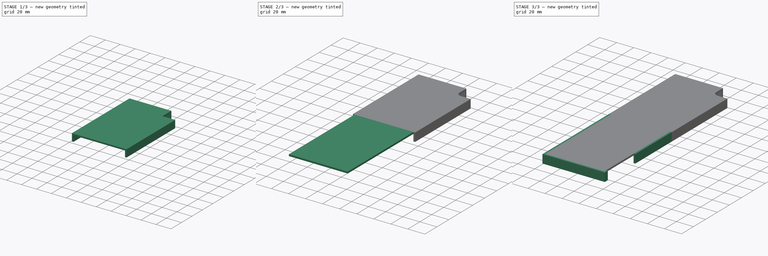
[diagram: build sequence overview — one tinted view per stage of 3, left to right]
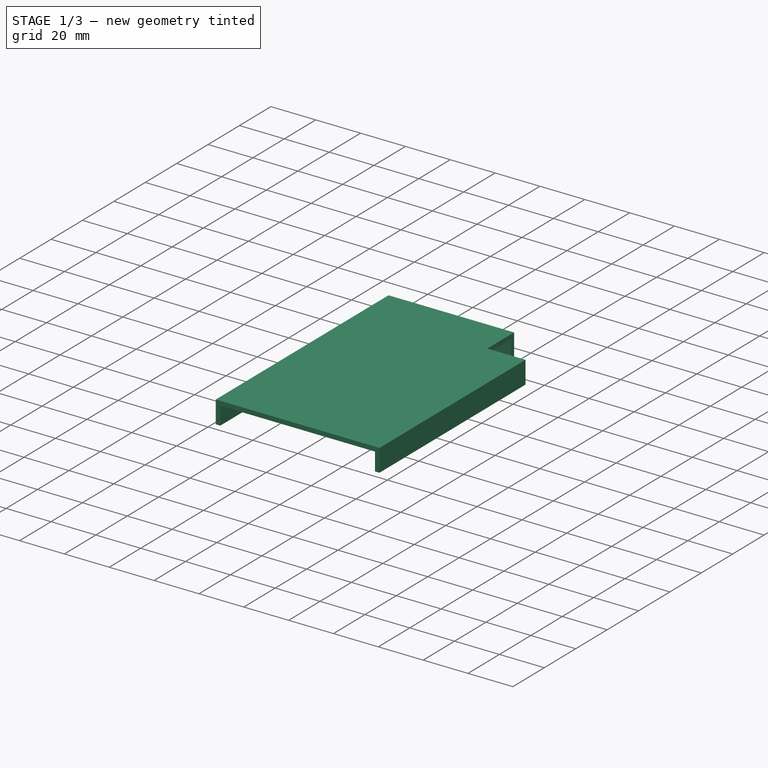
[diagram: stage 1 of 3 — iso view after this stage's code; geometry added in this stage tinted green]
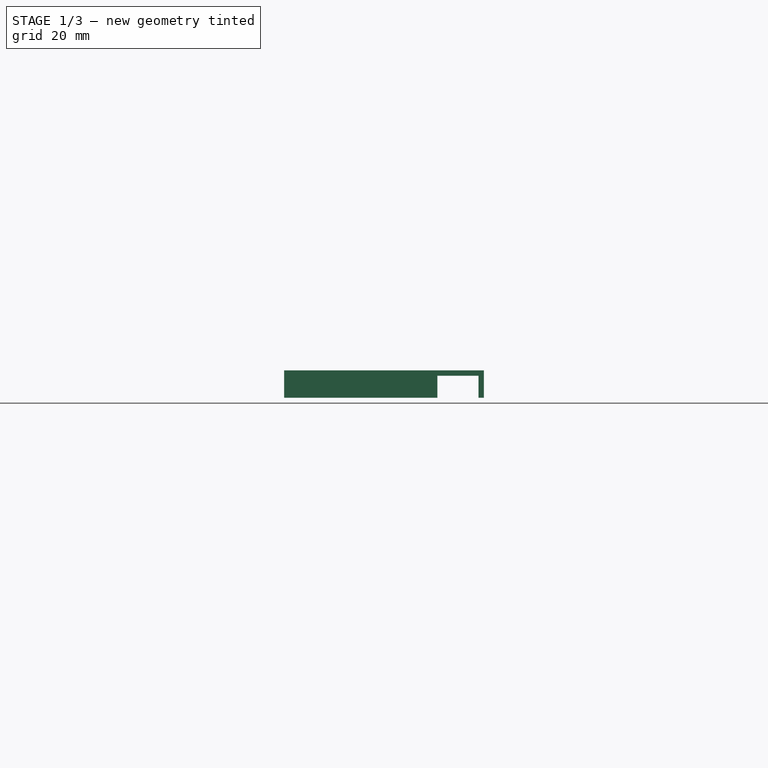
[diagram: stage 1 of 3 — front view after this stage's code; geometry added in this stage tinted green]
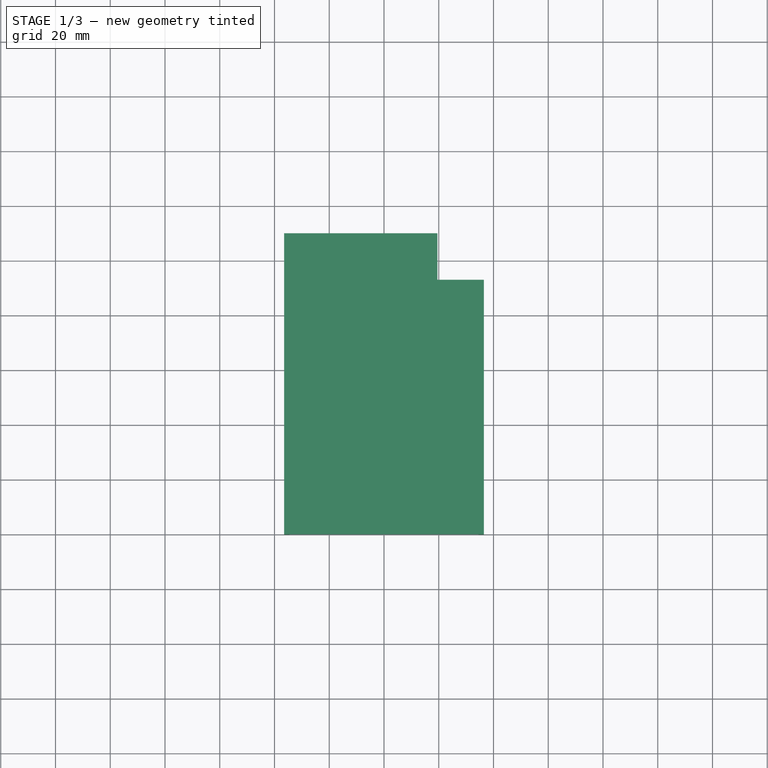
[diagram: stage 1 of 3 — top view after this stage's code; geometry added in this stage tinted green]
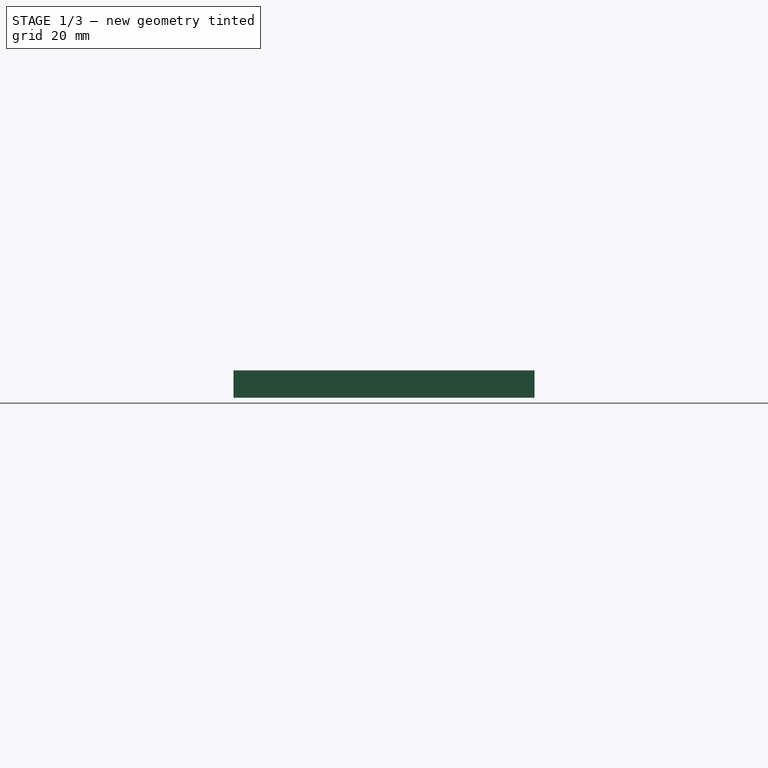
[diagram: stage 1 of 3 — right view after this stage's code; geometry added in this stage tinted green]
FCSTD DOCUMENT  (FreeCAD 0.21R33771 (Git))
Label: filter lid
License: All rights reserved
LicenseURL: https://en.wikipedia.org/wiki/All_rights_reserved
objects: Sketcher::SketchObject×5, PartDesign::Pad×4, PartDesign::Body×2, PartDesign::Pocket×1, PartDesign::Fillet×1
note: 19 computed .brp shape members not serialized (recipe doc carries the construction recipe); baked Part::Feature solids carry a one-line shape summary decoded from their .brp

FEATURE [Sketcher::SketchObject] Sketch
  FullyConstrained = true
  MapMode = 5
  Support = -> [XY_Plane]
  sketch-geometry (6):
    g0: LineSegment StartX=-34.5 StartY=108 StartZ=0 EndX=19.5 EndY=108 EndZ=0
    g1: LineSegment StartX=34.5 StartY=93 StartZ=0 EndX=34.5 EndY=0 EndZ=0
    g2: LineSegment StartX=34.5 StartY=0 StartZ=0 EndX=-34.5 EndY=0 EndZ=0
    g3: LineSegment StartX=-34.5 StartY=0 StartZ=0 EndX=-34.5 EndY=108 EndZ=0
    g4: LineSegment StartX=34.5 StartY=93 StartZ=0 EndX=19.5 EndY=93 EndZ=0
    g5: LineSegment StartX=19.5 StartY=93 StartZ=0 EndX=19.5 EndY=108 EndZ=0
  constraints (17):
    c: Symmetric(g2,g1,g-1)
    c: Coincident(g0,g5)
    c: Coincident(g4,g5)
    c: Coincident(g1,g4)
    c: DistanceY(g5,g5) = 15
    c: DistanceX(g4,g4) = 15
    c: DistanceY(g1,g1) = 93
    c: DistanceY(g3,g3) = 108
    c: DistanceX(g2,g2) = 69
    c: Vertical(g3)
    c: Vertical(g1)
    c: Horizontal(g0)
    c: Horizontal(g2)
    c: Vertical(g5)
    c: Coincident(g2,g3)
    c: Coincident(g0,g3)
    c: Coincident(g1,g2)
FEATURE [PartDesign::Pad] Pad
  Direction = (0,0,1)
  Length = 2
  Length2 = 10
  Profile = -> Sketch
  ReferenceAxis = -> Sketch [N_Axis]
  Type = 0
FEATURE [Sketcher::SketchObject] Sketch001
  AttachmentOffset = pos=(0,0,-8) rot=(0,0,1;0rad)
  ExternalGeometry = -> [Pad]
  FullyConstrained = true
  MapMode = 5
  Placement = pos=(0,0,-8) rot=(0,0,1;0rad)
  Support = -> [XY_Plane]
  sketch-geometry (10):
    g0: LineSegment StartX=-34.5 StartY=108 StartZ=0 EndX=-34.5 EndY=0 EndZ=0
    g1: LineSegment StartX=-34.5 StartY=0 StartZ=0 EndX=-36.5 EndY=0 EndZ=0
    g2: LineSegment StartX=-36.5 StartY=0 StartZ=0 EndX=-36.5 EndY=110 EndZ=0
    g3: LineSegment StartX=-36.5 StartY=110 StartZ=0 EndX=19.5 EndY=110 EndZ=0
    g4: LineSegment StartX=19.5 StartY=110 StartZ=0 EndX=19.5 EndY=108 EndZ=0
    g5: LineSegment StartX=19.5 StartY=108 StartZ=0 EndX=-34.5 EndY=108 EndZ=0
    g6: LineSegment StartX=34.5 StartY=93 StartZ=0 EndX=36.5 EndY=93 EndZ=0
    g7: LineSegment StartX=36.5 StartY=93 StartZ=0 EndX=36.5 EndY=0 EndZ=0
    g8: LineSegment StartX=36.5 StartY=0 StartZ=0 EndX=34.5 EndY=0 EndZ=0
    g9: LineSegment StartX=34.5 StartY=0 StartZ=0 EndX=34.5 EndY=93 EndZ=0
  constraints (27):
    c: Coincident(g0,g1)
    c: Coincident(g1,g2)
    c: Horizontal(g1)
    c: Vertical(g0)
    c: Vertical(g2)
    c: Coincident(g0,g-3)
    c: PointOnObject(g0,g-5)
    c: Coincident(g2,g3)
    c: Horizontal(g3)
    c: Coincident(g3,g4)
    c: Coincident(g4,g-5)
    c: Coincident(g4,g5)
    c: Coincident(g5,g0)
    c: Vertical(g4)
    c: DistanceY(g4,g4) = 2
    c: DistanceX(g1,g1) = 2
    c: Coincident(g6,g7)
    c: Coincident(g7,g8)
    c: Coincident(g8,g9)
    c: Coincident(g9,g6)
    c: Horizontal(g6)
    c: Horizontal(g8)
    c: Vertical(g7)
    c: Vertical(g9)
    c: Coincident(g6,g-4)
    c: PointOnObject(g7,g-1)
    c: DistanceX(g6,g6) = 2
FEATURE [PartDesign::Pad] Pad001
  AlongSketchNormal = false
  BaseFeature = -> Pad
  Direction = (0,0,1)
  Length = 10
  Length2 = 10
  Profile = -> Sketch001
  ReferenceAxis = -> Sketch001 [N_Axis]
  Type = 0
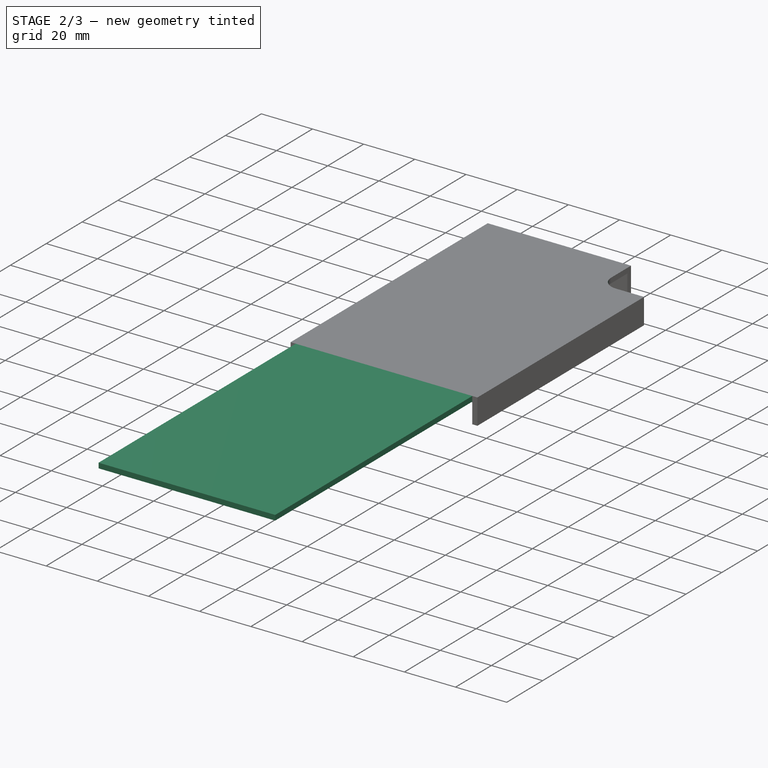
[diagram: stage 2 of 3 — iso view after this stage's code; geometry added in this stage tinted green]
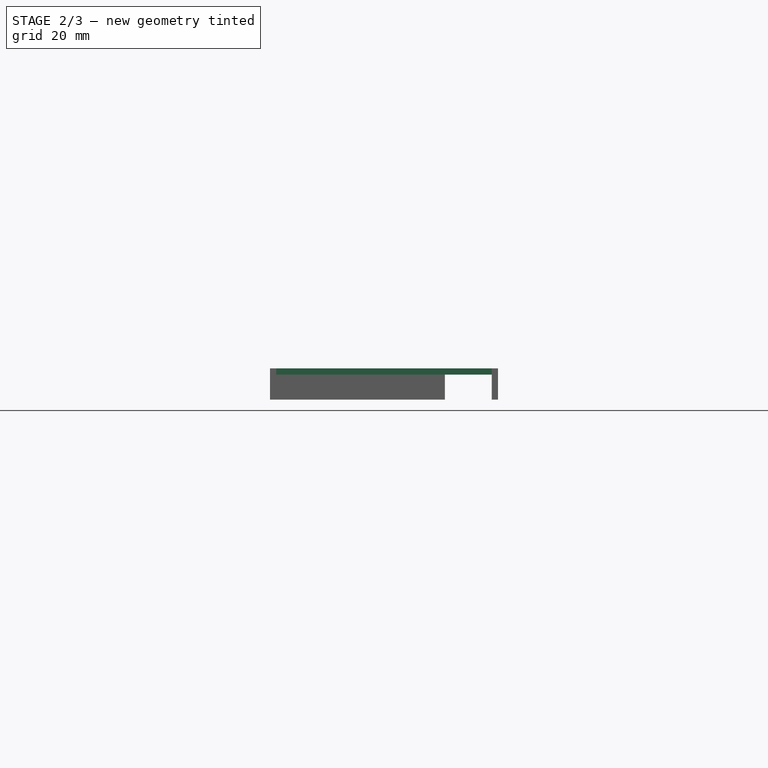
[diagram: stage 2 of 3 — front view after this stage's code; geometry added in this stage tinted green]
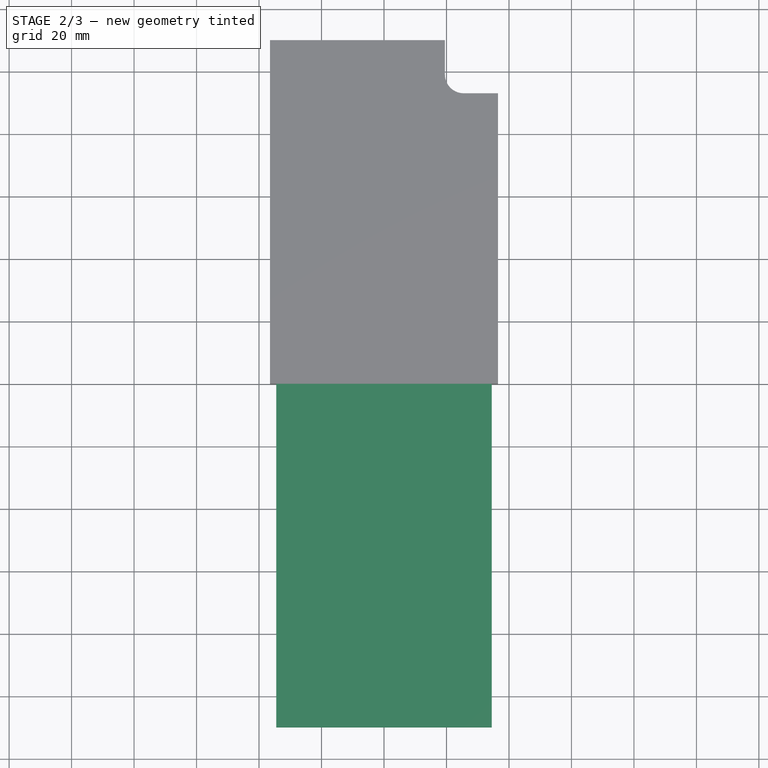
[diagram: stage 2 of 3 — top view after this stage's code; geometry added in this stage tinted green]
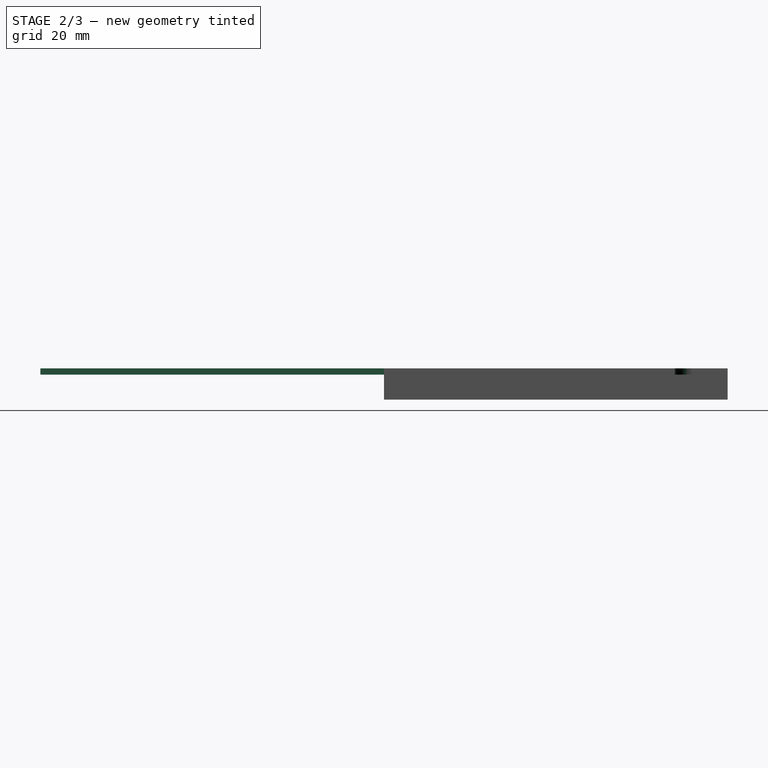
[diagram: stage 2 of 3 — right view after this stage's code; geometry added in this stage tinted green]
FEATURE [Sketcher::SketchObject] Sketch002
  FullyConstrained = true
  MapMode = 5
  Support = -> [XY_Plane001]
  sketch-geometry (4):
    g0: LineSegment StartX=34.5 StartY=0 StartZ=0 EndX=-34.5 EndY=0 EndZ=0
    g1: LineSegment StartX=-34.5 StartY=0 StartZ=0 EndX=-34.5 EndY=-110 EndZ=0
    g2: LineSegment StartX=-34.5 StartY=-110 StartZ=0 EndX=34.5 EndY=-110 EndZ=0
    g3: LineSegment StartX=34.5 StartY=-110 StartZ=0 EndX=34.5 EndY=0 EndZ=0
  constraints (11):
    c: PointOnObject(g0,g-1)
    c: Coincident(g0,g1)
    c: Vertical(g1)
    c: Coincident(g1,g2)
    c: Horizontal(g2)
    c: Coincident(g2,g3)
    c: Coincident(g3,g0)
    c: Vertical(g3)
    c: DistanceY(g1,g1) = 110
    c: DistanceX(g2,g2) = 69
    c: Symmetric(g0,g0,g-1)
FEATURE [PartDesign::Pad] Pad002
  Direction = (0,0,1)
  Length = 2
  Length2 = 10
  Profile = -> Sketch002
  ReferenceAxis = -> Sketch002 [N_Axis]
  Type = 0
FEATURE [PartDesign::Body] Body001
  Group = -> [Sketch002,Pad002,Sketch003,Pad003,Sketch004,Pocket]
  Origin = -> Origin001
  Tip = -> Pocket
FEATURE [PartDesign::Fillet] Fillet
  Base = -> Pad001 [Edge41]
  BaseFeature = -> Pad001
  Radius = 6
  SupportTransform = false
  UseAllEdges = false
FEATURE [PartDesign::Body] Body
  Group = -> [Sketch,Pad,Sketch001,Pad001,Fillet]
  Origin = -> Origin
  Tip = -> Fillet
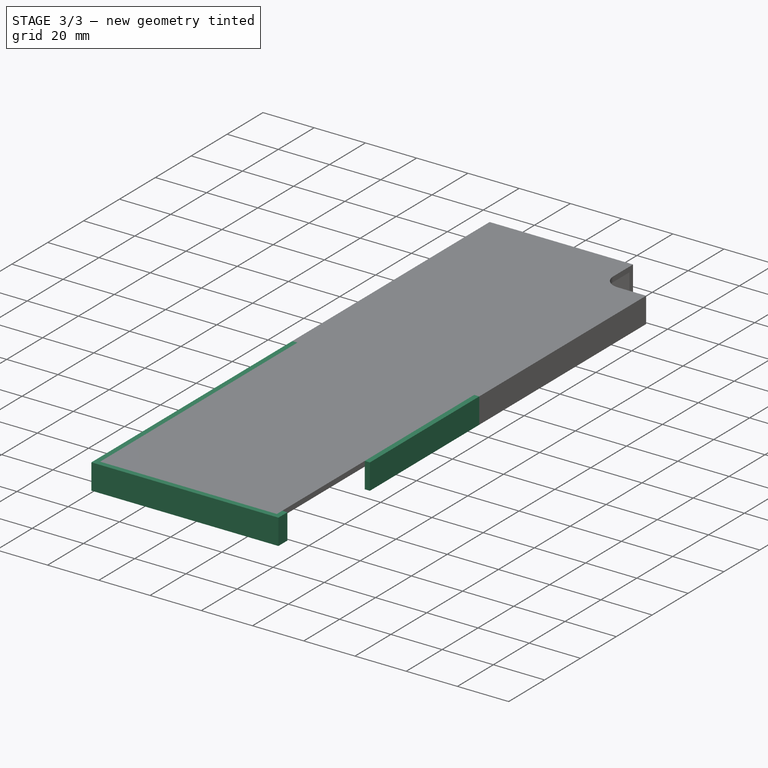
[diagram: stage 3 of 3 — iso view after this stage's code; geometry added in this stage tinted green]
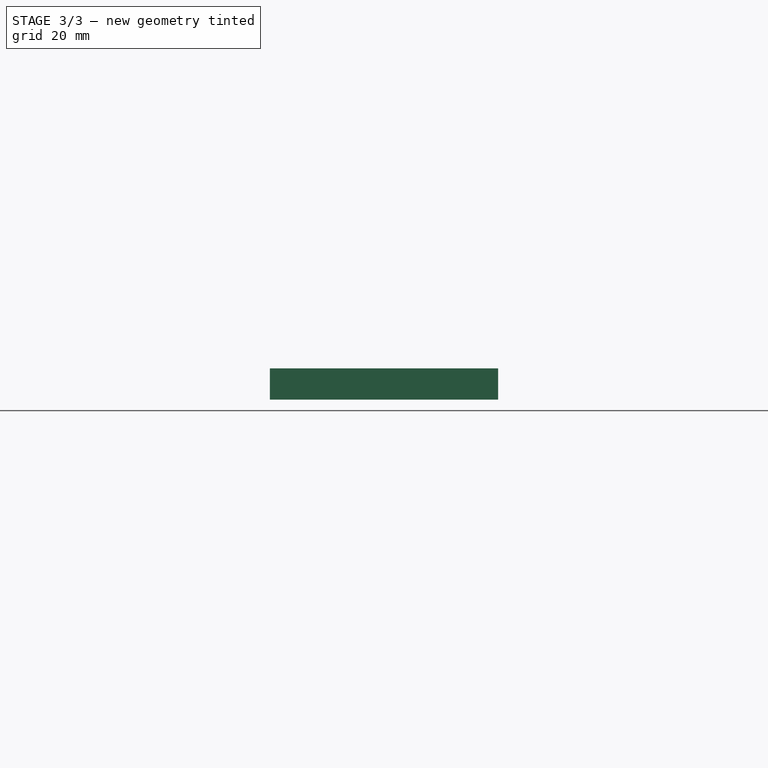
[diagram: stage 3 of 3 — front view after this stage's code; geometry added in this stage tinted green]
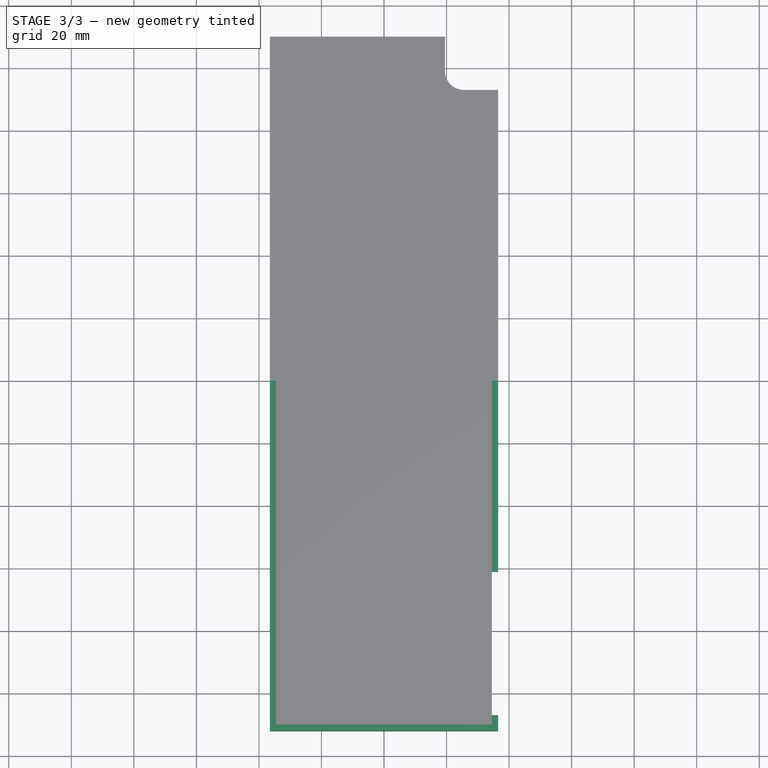
[diagram: stage 3 of 3 — top view after this stage's code; geometry added in this stage tinted green]
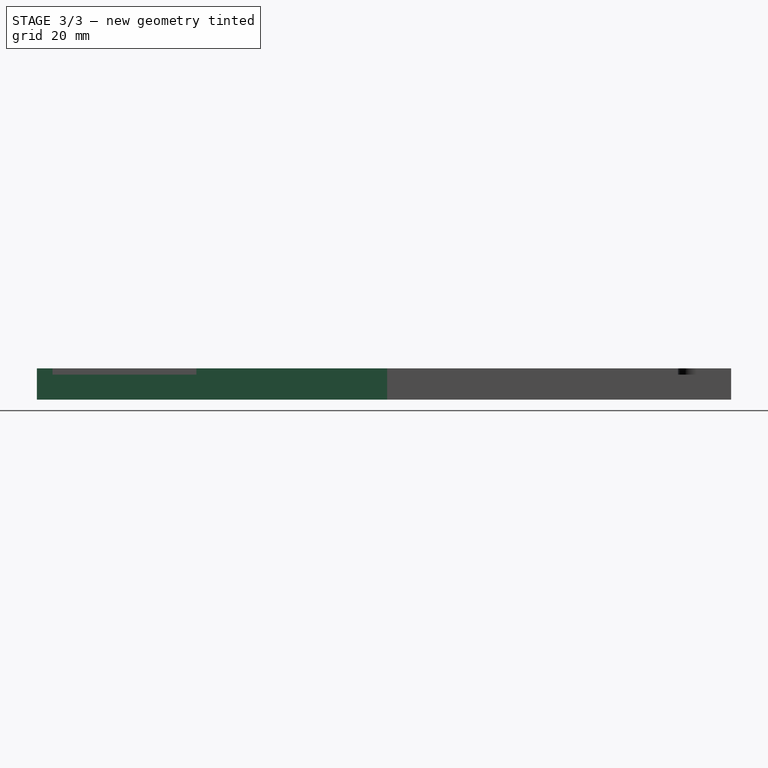
[diagram: stage 3 of 3 — right view after this stage's code; geometry added in this stage tinted green]
FEATURE [Sketcher::SketchObject] Sketch003
  AttachmentOffset = pos=(0,0,-8) rot=(0,0,1;0rad)
  FullyConstrained = true
  MapMode = 5
  Placement = pos=(0,0,-8) rot=(0,0,1;0rad)
  Support = -> [XY_Plane001]
  sketch-geometry (8):
    g0: LineSegment StartX=-34.5 StartY=0 StartZ=0 EndX=-36.5 EndY=0 EndZ=0
    g1: LineSegment StartX=-36.5 StartY=0 StartZ=0 EndX=-36.5 EndY=-112 EndZ=0
    g2: LineSegment StartX=-36.5 StartY=-112 StartZ=0 EndX=36.5 EndY=-112 EndZ=0
    g3: LineSegment StartX=36.5 StartY=-112 StartZ=0 EndX=36.5 EndY=0 EndZ=0
    g4: LineSegment StartX=36.5 StartY=0 StartZ=0 EndX=34.5 EndY=1.61983e-11 EndZ=0
    g5: LineSegment StartX=34.5 StartY=1.61983e-11 StartZ=0 EndX=34.5 EndY=-110 EndZ=0
    g6: LineSegment StartX=34.5 StartY=-110 StartZ=0 EndX=-34.5 EndY=-110 EndZ=0
    g7: LineSegment StartX=-34.5 StartY=-110 StartZ=0 EndX=-34.5 EndY=0 EndZ=0
  constraints (23):
    c: PointOnObject(g0,g-1)
    c: PointOnObject(g0,g-1)
    c: Coincident(g0,g1)
    c: Vertical(g1)
    c: Coincident(g1,g2)
    c: Horizontal(g2)
    c: PointOnObject(g3,g-1)
    c: Vertical(g3)
    c: Coincident(g3,g4)
    c: Coincident(g4,g5)
    c: Vertical(g5)
    c: Coincident(g5,g6)
    c: Horizontal(g6)
    c: Coincident(g6,g7)
    c: Coincident(g7,g0)
    c: Vertical(g7)
    c: DistanceX(g0,g0) = 2
    c: DistanceX(g4,g4) = 2
    c: DistanceX(g0,g4) = 69
    c: DistanceY(g1,g6) = 2
    c: Coincident(g2,g3)
    c: Symmetric(g0,g4,g-1)
    c: DistanceY(g5,g5) = 110
FEATURE [PartDesign::Pad] Pad003
  BaseFeature = -> Pad002
  Direction = (0,0,1)
  Length = 10
  Length2 = 10
  Profile = -> Sketch003
  ReferenceAxis = -> Sketch003 [N_Axis]
  Type = 0
FEATURE [Sketcher::SketchObject] Sketch004
  ExternalGeometry = -> [Pad003]
  FullyConstrained = true
  MapMode = 5
  Support = -> [XY_Plane001]
  sketch-geometry (4):
    g0: LineSegment StartX=34.5 StartY=-61 StartZ=0 EndX=36.5 EndY=-61 EndZ=0
    g1: LineSegment StartX=36.5 StartY=-61 StartZ=0 EndX=36.5 EndY=-107 EndZ=0
    g2: LineSegment StartX=36.5 StartY=-107 StartZ=0 EndX=34.5 EndY=-107 EndZ=0
    g3: LineSegment StartX=34.5 StartY=-107 StartZ=0 EndX=34.5 EndY=-61 EndZ=0
  constraints (12):
    c: Coincident(g0,g1)
    c: Coincident(g1,g2)
    c: Coincident(g2,g3)
    c: Coincident(g3,g0)
    c: Horizontal(g0)
    c: Horizontal(g2)
    c: Vertical(g1)
    c: Vertical(g3)
    c: DistanceY(g1,g1) = 46
    c: DistanceY(g-3,g1) = 5
    c: DistanceX(g2,g2) = 2
    c: DistanceX(g-1,g2) = 34.5
FEATURE [PartDesign::Pocket] Pocket
  BaseFeature = -> Pad003
  Direction = (0,0,-1)
  Length = 5
  Length2 = 5
  Midplane = true
  Profile = -> Sketch004
  ReferenceAxis = -> Sketch004 [N_Axis]
  Type = 1
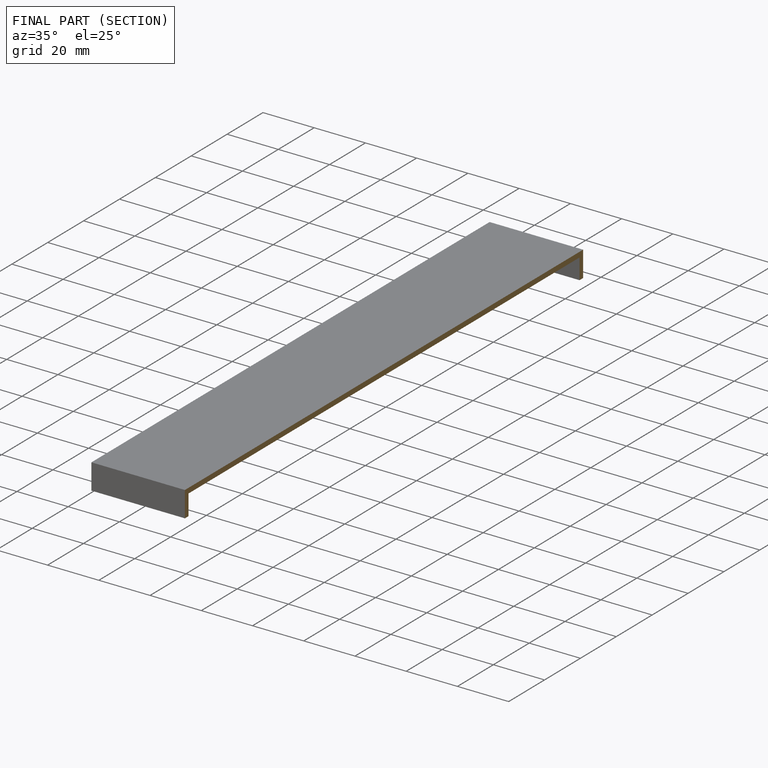
[diagram: finished part — half-section view (interior)]
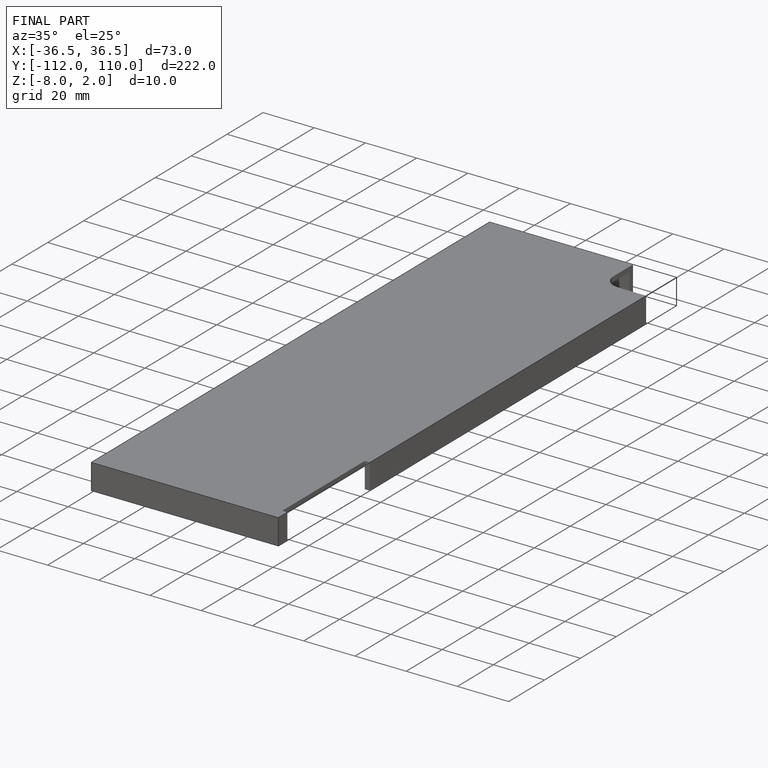
[diagram: finished part — iso view with bounding-box wireframe]
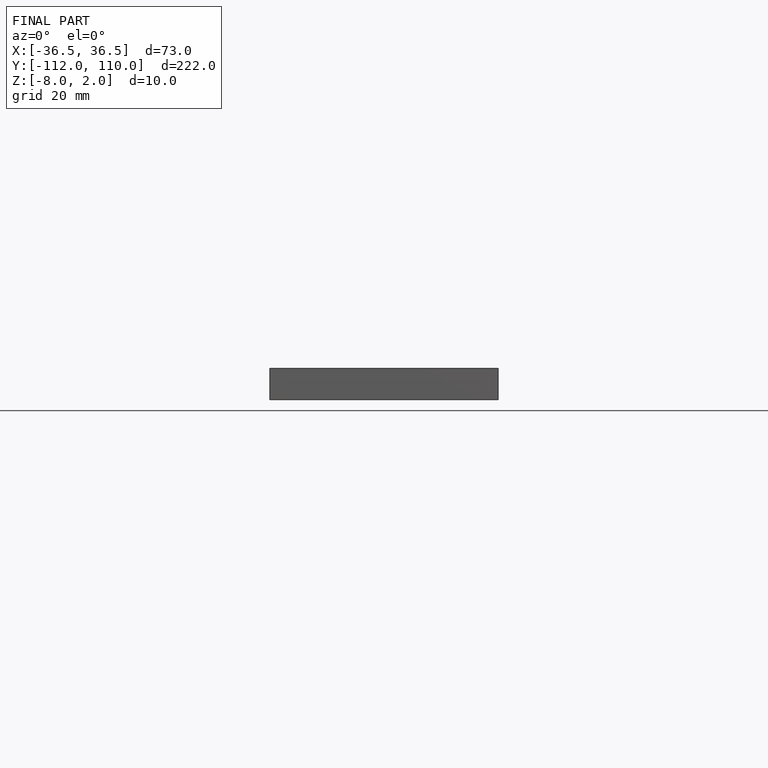
[diagram: finished part — front view with bounding-box wireframe]
